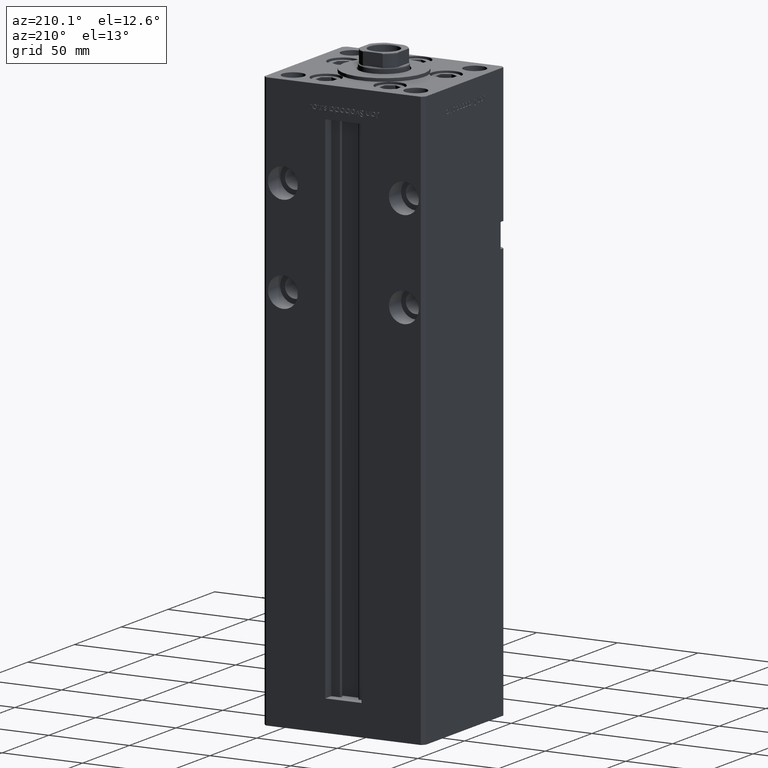
[diagram: clean part render]
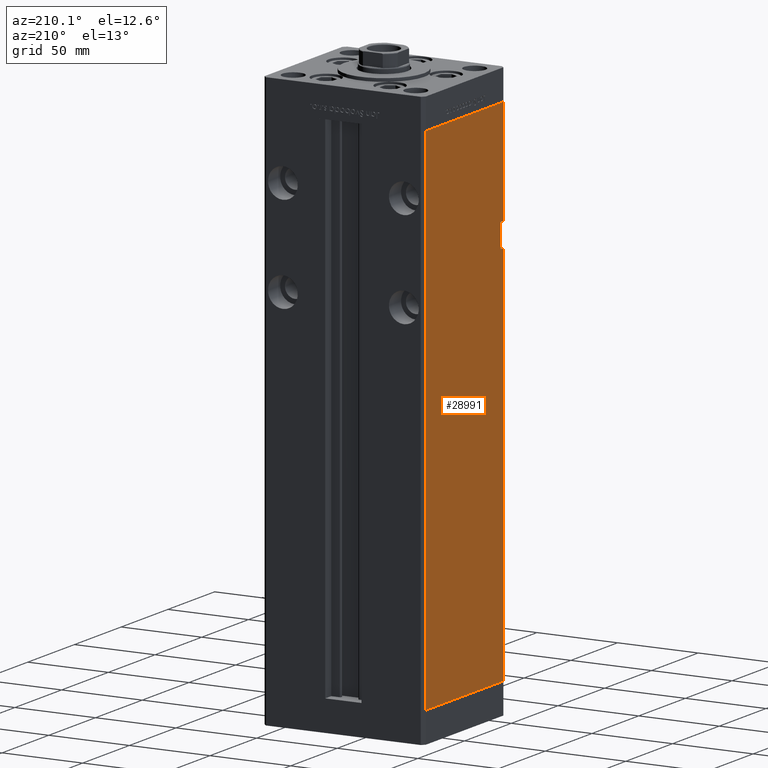
[diagram: same view with one face highlighted and labeled with its STEP entity id]
A machine part, auxiliary view. The second image highlights one B-rep face of the part: STEP entity #28991.
In plain terms, the highlighted planar face has unit normal (1, 0, 0).
Its self-contained STEP definition (entity closure, byte-faithful):
#182 = CARTESIAN_POINT ( 'NONE',  ( -49.99999999999998579, -41.49999999999999289, 0.000000000000000000 ) ) ;
#623 = EDGE_CURVE ( 'NONE', #20884, #45158, #23849, .T. ) ;
#735 = DIRECTION ( 'NONE',  ( 3.344045254895050973E-16, -1.000000000000000000, 0.000000000000000000 ) ) ;
#854 = ORIENTED_EDGE ( 'NONE', *, *, #623, .T. ) ;
#1846 = ORIENTED_EDGE ( 'NONE', *, *, #48729, .F. ) ;
#2417 = EDGE_CURVE ( 'NONE', #35696, #7367, #23923, .T. ) ;
#3005 = LINE ( 'NONE', #15089, #8925 ) ;
#3318 = ORIENTED_EDGE ( 'NONE', *, *, #2417, .T. ) ;
#3941 = LINE ( 'NONE', #49345, #38938 ) ;
#7027 = CARTESIAN_POINT ( 'NONE',  ( -49.99999999999998579, -38.50000000000000000, 253.0000000000000000 ) ) ;
#7367 = VERTEX_POINT ( 'NONE', #50110 ) ;
#7516 = EDGE_CURVE ( 'NONE', #35696, #52615, #17369, .T. ) ;
#8668 = DIRECTION ( 'NONE',  ( -0.000000000000000000, -1.000000000000000000, -0.000000000000000000 ) ) ;
#8925 = VECTOR ( 'NONE', #23409, 1000.000000000000000 ) ;
#9094 = EDGE_CURVE ( 'NONE', #45158, #13587, #3005, .T. ) ;
#9646 = CARTESIAN_POINT ( 'NONE',  ( -49.99999999999998579, -41.49999999999999289, 318.5000000000000000 ) ) ;
#11819 = ORIENTED_EDGE ( 'NONE', *, *, #53183, .F. ) ;
#12823 = CARTESIAN_POINT ( 'NONE',  ( -49.99999999999998579, -38.50000000000000000, 253.0000000000000000 ) ) ;
#12842 = LINE ( 'NONE', #18185, #22026 ) ;
#13587 = VERTEX_POINT ( 'NONE', #182 ) ;
#15089 = CARTESIAN_POINT ( 'NONE',  ( -50.00000000000001421, 41.49999999999999289, 0.000000000000000000 ) ) ;
#16368 = ORIENTED_EDGE ( 'NONE', *, *, #34557, .F. ) ;
#16410 = CARTESIAN_POINT ( 'NONE',  ( -49.99999999999998579, -38.50000000000000000, 253.0000000000000000 ) ) ;
#16874 = CARTESIAN_POINT ( 'NONE',  ( -49.99999999999998579, -41.49999999999999289, 238.0000000000000000 ) ) ;
#17325 = VECTOR ( 'NONE', #32975, 1000.000000000000000 ) ;
#17369 = LINE ( 'NONE', #12823, #45739 ) ;
#18185 = CARTESIAN_POINT ( 'NONE',  ( -50.00000000000001421, 41.49999999999999289, 318.5000000000000000 ) ) ;
#18669 = EDGE_CURVE ( 'NONE', #20884, #31006, #12842, .T. ) ;
#19391 = ORIENTED_EDGE ( 'NONE', *, *, #9094, .T. ) ;
#20884 = VERTEX_POINT ( 'NONE', #51706 ) ;
#20977 = PLANE ( 'NONE',  #51195 ) ;
#21464 = LINE ( 'NONE', #9646, #39637 ) ;
#22026 = VECTOR ( 'NONE', #735, 1000.000000000000000 ) ;
#22110 = VECTOR ( 'NONE', #8668, 1000.000000000000000 ) ;
#23409 = DIRECTION ( 'NONE',  ( 3.344045254895050973E-16, -1.000000000000000000, 0.000000000000000000 ) ) ;
#23849 = LINE ( 'NONE', #32461, #17325 ) ;
#23923 = LINE ( 'NONE', #7027, #36343 ) ;
#24273 = CARTESIAN_POINT ( 'NONE',  ( -49.99999999999998579, -38.50000000000000000, 238.0000000000000000 ) ) ;
#26043 = DIRECTION ( 'NONE',  ( -0.000000000000000000, -0.000000000000000000, -1.000000000000000000 ) ) ;
#27807 = DIRECTION ( 'NONE',  ( -3.344045254895050480E-16, 1.000000000000000000, 0.000000000000000000 ) ) ;
#28991 = ADVANCED_FACE ( 'NONE', ( #32381 ), #20977, .F. ) ;
#29320 = CARTESIAN_POINT ( 'NONE',  ( -50.00000000000001421, 41.49999999999999289, 318.5000000000000000 ) ) ;
#31006 = VERTEX_POINT ( 'NONE', #33852 ) ;
#32381 = FACE_OUTER_BOUND ( 'NONE', #49161, .T. ) ;
#32461 = CARTESIAN_POINT ( 'NONE',  ( -50.00000000000001421, 41.49999999999999289, 318.5000000000000000 ) ) ;
#32975 = DIRECTION ( 'NONE',  ( -0.000000000000000000, -0.000000000000000000, -1.000000000000000000 ) ) ;
#33852 = CARTESIAN_POINT ( 'NONE',  ( -49.99999999999998579, -41.49999999999999289, 318.5000000000000000 ) ) ;
#34412 = ORIENTED_EDGE ( 'NONE', *, *, #18669, .F. ) ;
#34557 = EDGE_CURVE ( 'NONE', #52615, #39422, #37701, .T. ) ;
#35696 = VERTEX_POINT ( 'NONE', #16410 ) ;
#36343 = VECTOR ( 'NONE', #44122, 1000.000000000000000 ) ;
#36473 = DIRECTION ( 'NONE',  ( -0.000000000000000000, -0.000000000000000000, -1.000000000000000000 ) ) ;
#37588 = CARTESIAN_POINT ( 'NONE',  ( -50.00000000000001421, 41.49999999999999289, 0.000000000000000000 ) ) ;
#37701 = LINE ( 'NONE', #45507, #22110 ) ;
#38938 = VECTOR ( 'NONE', #36473, 1000.000000000000000 ) ;
#39422 = VERTEX_POINT ( 'NONE', #16874 ) ;
#39637 = VECTOR ( 'NONE', #26043, 1000.000000000000000 ) ;
#41320 = DIRECTION ( 'NONE',  ( 0.000000000000000000, 0.000000000000000000, -1.000000000000000000 ) ) ;
#44122 = DIRECTION ( 'NONE',  ( -0.000000000000000000, -1.000000000000000000, -0.000000000000000000 ) ) ;
#45158 = VERTEX_POINT ( 'NONE', #37588 ) ;
#45507 = CARTESIAN_POINT ( 'NONE',  ( -49.99999999999998579, -38.50000000000000000, 238.0000000000000000 ) ) ;
#45739 = VECTOR ( 'NONE', #41320, 1000.000000000000000 ) ;
#48729 = EDGE_CURVE ( 'NONE', #39422, #13587, #21464, .T. ) ;
#49161 = EDGE_LOOP ( 'NONE', ( #1846, #16368, #49431, #3318, #11819, #34412, #854, #19391 ) ) ;
#49345 = CARTESIAN_POINT ( 'NONE',  ( -49.99999999999998579, -41.49999999999999289, 318.5000000000000000 ) ) ;
#49431 = ORIENTED_EDGE ( 'NONE', *, *, #7516, .F. ) ;
#49754 = DIRECTION ( 'NONE',  ( 1.000000000000000000, 3.344045254895050480E-16, -0.000000000000000000 ) ) ;
#50110 = CARTESIAN_POINT ( 'NONE',  ( -49.99999999999998579, -41.49999999999999289, 253.0000000000000000 ) ) ;
#51195 = AXIS2_PLACEMENT_3D ( 'NONE', #29320, #49754, #27807 ) ;
#51706 = CARTESIAN_POINT ( 'NONE',  ( -50.00000000000001421, 41.49999999999999289, 318.5000000000000000 ) ) ;
#52615 = VERTEX_POINT ( 'NONE', #24273 ) ;
#53183 = EDGE_CURVE ( 'NONE', #31006, #7367, #3941, .T. ) ;